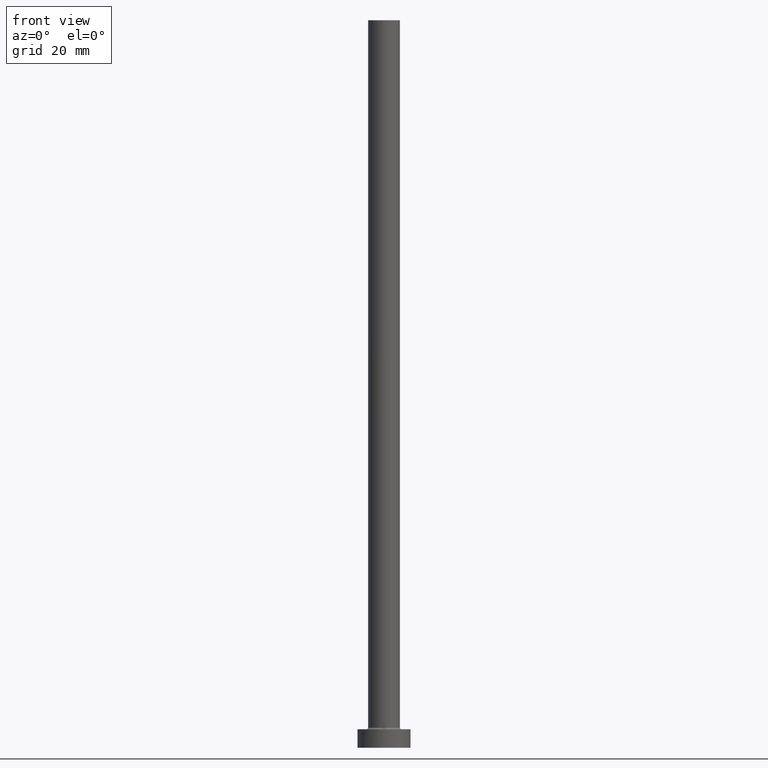
[diagram: clean part render]
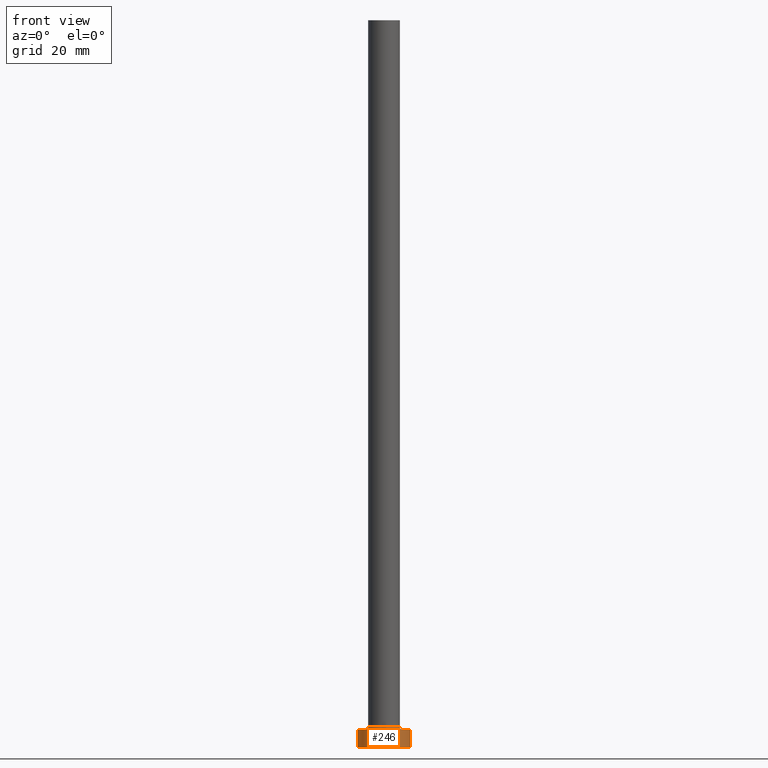
[diagram: same view with one face highlighted and labeled with its STEP entity id]
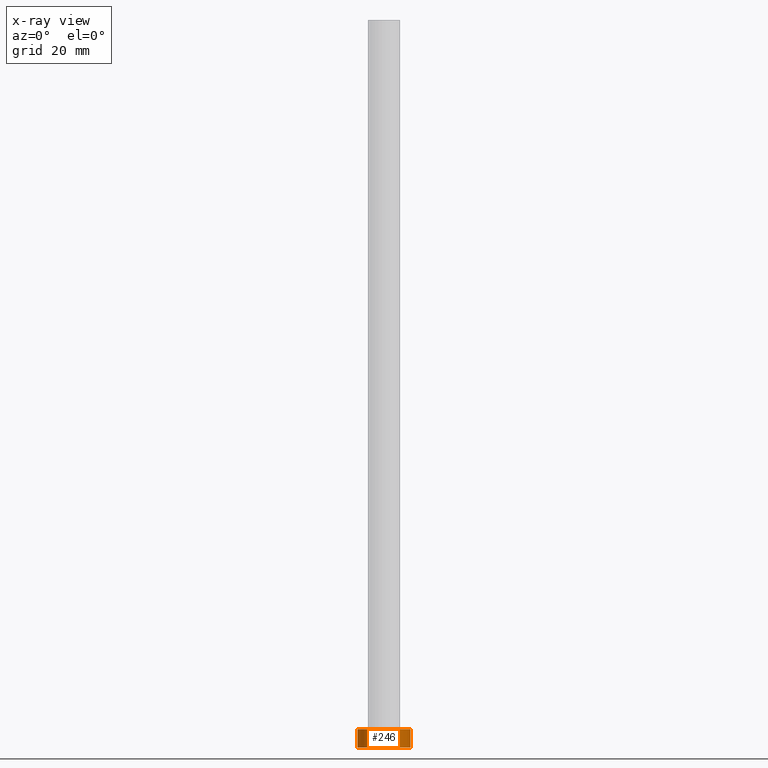
[diagram: x-ray of the same camera — body ghosted, the highlighted face saturated]
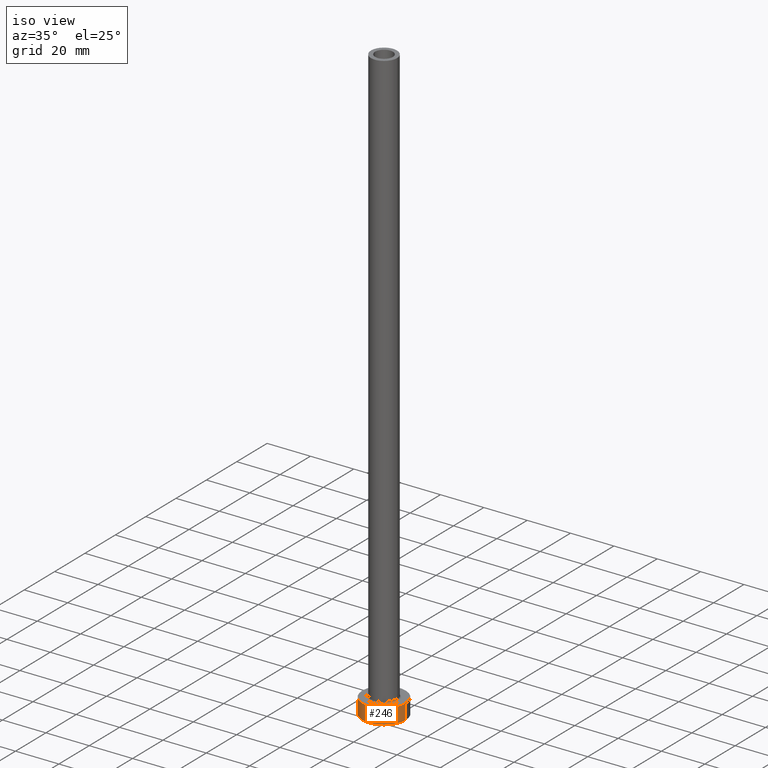
[diagram: same view with one face highlighted and labeled with its STEP entity id]
A machine part, front view. The second image highlights one B-rep face of the part: STEP entity #246.
The next image is the same camera in x-ray: the body ghosted, the highlighted face saturated — about 0% of this face is hidden behind the body in this view.
A second angle (iso view) of the same face is appended — the face is thin or edge-on in the first view.
In plain terms, the highlighted cylindrical surface (edge-blend (fillet) strip) has radius 10 mm, axis along (-0, -0, -1).
Its self-contained STEP definition (entity closure, byte-faithful):
#13 = CIRCLE ( 'NONE', #371, 10.00000000000000000 ) ;
#23 = CARTESIAN_POINT ( 'NONE',  ( -10.00000000000000000, 0.000000000000000000, 0.000000000000000000 ) ) ;
#25 = CARTESIAN_POINT ( 'NONE',  ( 0.000000000000000000, 0.000000000000000000, 0.000000000000000000 ) ) ;
#63 = EDGE_CURVE ( 'NONE', #170, #323, #328, .T. ) ;
#66 = LINE ( 'NONE', #215, #280 ) ;
#119 = DIRECTION ( 'NONE',  ( 0.000000000000000000, 0.000000000000000000, 1.000000000000000000 ) ) ;
#125 = DIRECTION ( 'NONE',  ( 1.000000000000000000, 0.000000000000000000, 0.000000000000000000 ) ) ;
#129 = EDGE_CURVE ( 'NONE', #208, #323, #13, .T. ) ;
#130 = EDGE_CURVE ( 'NONE', #148, #170, #173, .T. ) ;
#143 = ORIENTED_EDGE ( 'NONE', *, *, #352, .T. ) ;
#148 = VERTEX_POINT ( 'NONE', #270 ) ;
#152 = DIRECTION ( 'NONE',  ( -0.000000000000000000, -0.000000000000000000, -1.000000000000000000 ) ) ;
#160 = DIRECTION ( 'NONE',  ( 0.000000000000000000, 0.000000000000000000, 1.000000000000000000 ) ) ;
#166 = DIRECTION ( 'NONE',  ( -0.000000000000000000, -0.000000000000000000, -1.000000000000000000 ) ) ;
#170 = VERTEX_POINT ( 'NONE', #413 ) ;
#173 = CIRCLE ( 'NONE', #392, 10.00000000000000000 ) ;
#174 = CYLINDRICAL_SURFACE ( 'NONE', #303, 10.00000000000000000 ) ;
#176 = CARTESIAN_POINT ( 'NONE',  ( 0.000000000000000000, 0.000000000000000000, 7.000000000000000000 ) ) ;
#206 = ORIENTED_EDGE ( 'NONE', *, *, #130, .F. ) ;
#208 = VERTEX_POINT ( 'NONE', #23 ) ;
#214 = VECTOR ( 'NONE', #152, 1000.000000000000000 ) ;
#215 = CARTESIAN_POINT ( 'NONE',  ( -10.00000000000000000, 0.000000000000000000, 7.000000000000000000 ) ) ;
#216 = ORIENTED_EDGE ( 'NONE', *, *, #129, .T. ) ;
#226 = ORIENTED_EDGE ( 'NONE', *, *, #63, .F. ) ;
#246 = ADVANCED_FACE ( 'NONE', ( #351 ), #174, .T. ) ;
#265 = CARTESIAN_POINT ( 'NONE',  ( 0.000000000000000000, 0.000000000000000000, 7.000000000000000000 ) ) ;
#270 = CARTESIAN_POINT ( 'NONE',  ( -10.00000000000000000, 0.000000000000000000, 7.000000000000000000 ) ) ;
#280 = VECTOR ( 'NONE', #365, 1000.000000000000000 ) ;
#302 = DIRECTION ( 'NONE',  ( 1.000000000000000000, 0.000000000000000000, 0.000000000000000000 ) ) ;
#303 = AXIS2_PLACEMENT_3D ( 'NONE', #176, #166, #355 ) ;
#322 = CARTESIAN_POINT ( 'NONE',  ( 10.00000000000000000, 1.224646799147353256E-15, 0.000000000000000000 ) ) ;
#323 = VERTEX_POINT ( 'NONE', #322 ) ;
#328 = LINE ( 'NONE', #376, #214 ) ;
#351 = FACE_OUTER_BOUND ( 'NONE', #420, .T. ) ;
#352 = EDGE_CURVE ( 'NONE', #148, #208, #66, .T. ) ;
#355 = DIRECTION ( 'NONE',  ( -1.000000000000000000, 0.000000000000000000, 0.000000000000000000 ) ) ;
#365 = DIRECTION ( 'NONE',  ( -0.000000000000000000, -0.000000000000000000, -1.000000000000000000 ) ) ;
#371 = AXIS2_PLACEMENT_3D ( 'NONE', #25, #119, #302 ) ;
#376 = CARTESIAN_POINT ( 'NONE',  ( 10.00000000000000000, 1.224646799147353256E-15, 7.000000000000000000 ) ) ;
#392 = AXIS2_PLACEMENT_3D ( 'NONE', #265, #160, #125 ) ;
#413 = CARTESIAN_POINT ( 'NONE',  ( 10.00000000000000000, 1.224646799147353256E-15, 7.000000000000000000 ) ) ;
#420 = EDGE_LOOP ( 'NONE', ( #226, #206, #143, #216 ) ) ;